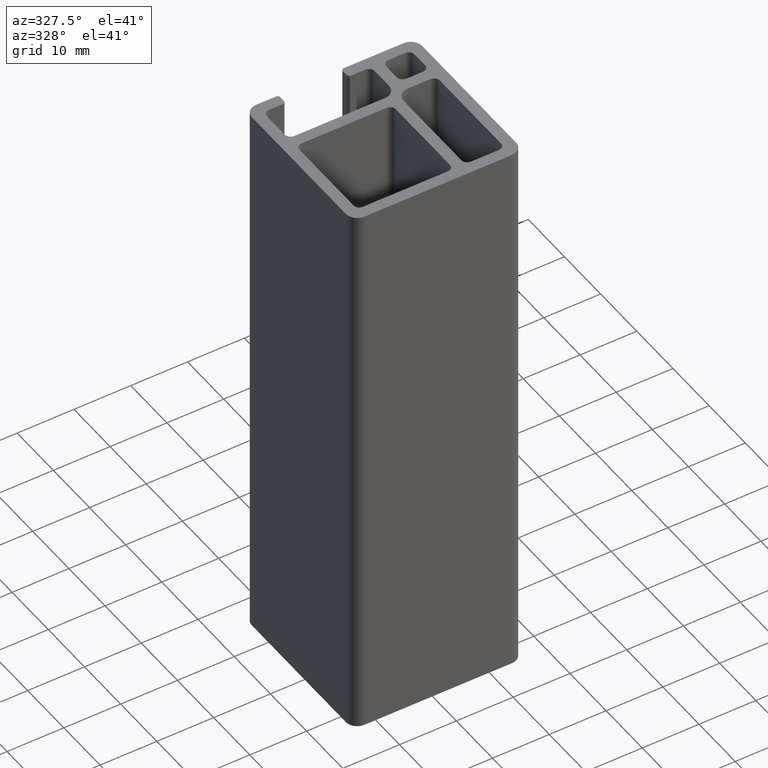
[diagram: clean part render]
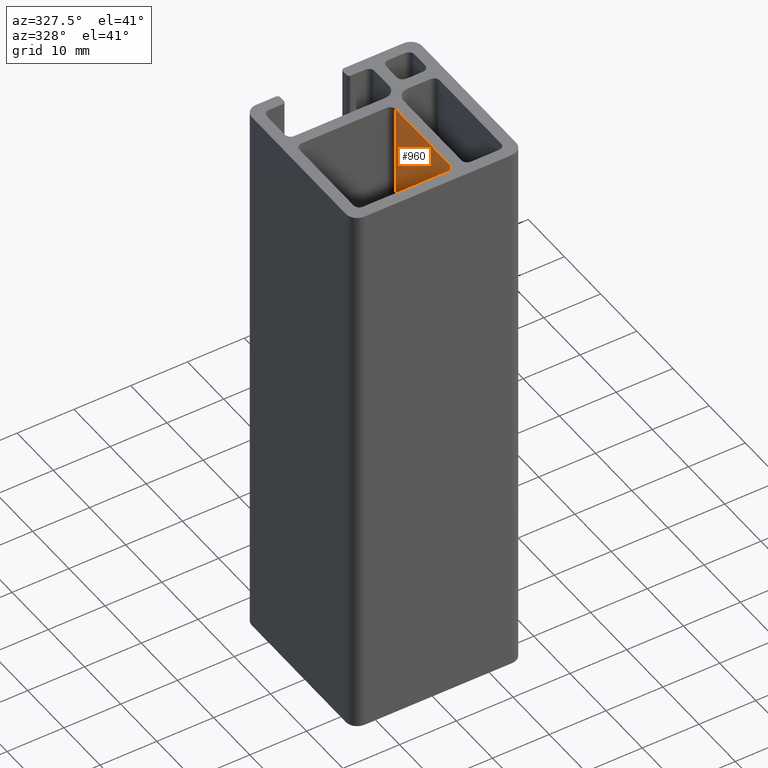
[diagram: same view with one face highlighted and labeled with its STEP entity id]
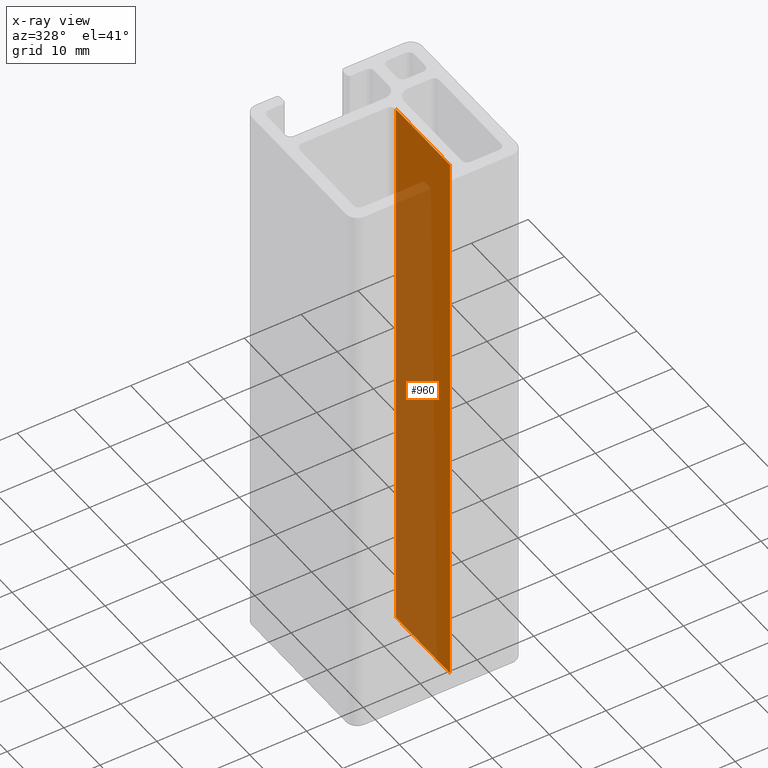
[diagram: x-ray of the same camera — body ghosted, the highlighted face saturated]
A machine part, auxiliary view. The second image highlights one B-rep face of the part: STEP entity #960.
The next image is the same camera in x-ray: the body ghosted, the highlighted face saturated — about 62% of this face is hidden behind the body in this view.
In plain terms, the highlighted planar face has unit normal (1, 0, 0).
Its self-contained STEP definition (entity closure, byte-faithful):
#108=FACE_OUTER_BOUND('',#158,.T.);
#158=EDGE_LOOP('',(#691,#692,#693,#694));
#216=LINE('',#1446,#312);
#228=LINE('',#1481,#324);
#229=LINE('',#1484,#325);
#230=LINE('',#1485,#326);
#312=VECTOR('',#1152,100.);
#324=VECTOR('',#1186,100.);
#325=VECTOR('',#1191,15.);
#326=VECTOR('',#1192,15.);
#408=VERTEX_POINT('',#1440);
#410=VERTEX_POINT('',#1444);
#421=VERTEX_POINT('',#1478);
#422=VERTEX_POINT('',#1480);
#514=EDGE_CURVE('',#410,#408,#216,.T.);
#531=EDGE_CURVE('',#422,#421,#228,.T.);
#533=EDGE_CURVE('',#408,#421,#229,.T.);
#534=EDGE_CURVE('',#422,#410,#230,.T.);
#691=ORIENTED_EDGE('',*,*,#533,.F.);
#692=ORIENTED_EDGE('',*,*,#514,.F.);
#693=ORIENTED_EDGE('',*,*,#534,.F.);
#694=ORIENTED_EDGE('',*,*,#531,.T.);
#926=PLANE('',#1028);
#960=ADVANCED_FACE('',(#108),#926,.F.);
#1028=AXIS2_PLACEMENT_3D('',#1483,#1189,#1190);
#1152=DIRECTION('',(0.,0.,1.));
#1186=DIRECTION('',(0.,0.,1.));
#1189=DIRECTION('center_axis',(1.,7.77156117237609E-16,0.));
#1190=DIRECTION('ref_axis',(-7.99360577730113E-16,1.,0.));
#1191=DIRECTION('',(7.77156117237609E-16,-1.,0.));
#1192=DIRECTION('',(-7.77156117237609E-16,1.,0.));
#1440=CARTESIAN_POINT('',(4.,3.00000000000001,100.));
#1444=CARTESIAN_POINT('',(4.,3.00000000000001,0.));
#1446=CARTESIAN_POINT('',(4.,3.00000000000001,0.));
#1478=CARTESIAN_POINT('',(4.00000000000001,-12.,100.));
#1480=CARTESIAN_POINT('',(4.00000000000001,-12.,0.));
#1481=CARTESIAN_POINT('',(4.00000000000001,-12.,0.));
#1483=CARTESIAN_POINT('Origin',(4.00000000000001,-12.,0.));
#1484=CARTESIAN_POINT('',(4.,-5.99999999980526,100.));
#1485=CARTESIAN_POINT('',(4.,-5.99999999980526,0.));